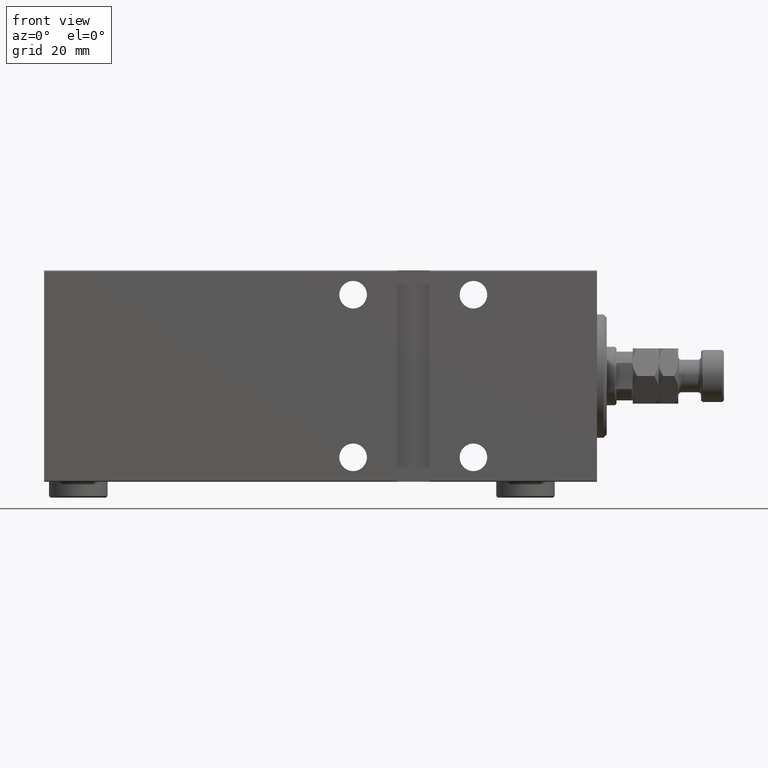
[diagram: clean part render]
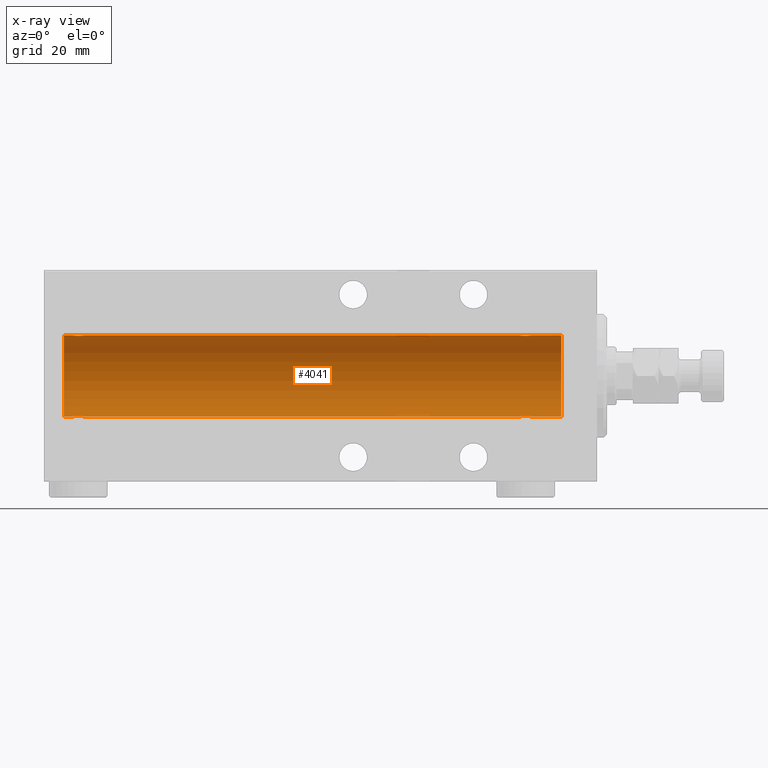
[diagram: x-ray — body ghosted, one internal face saturated and labeled with its STEP entity id]
A machine part, front view, then the same camera in x-ray: the body is ghosted and one INTERNAL B-rep face — a face not visible from any outside direction — is saturated and labeled: STEP entity #4041.
In plain terms, the highlighted cylindrical surface (partial cylindrical patch) has radius 12.5 mm, axis along (1, 0, -0).
Its self-contained STEP definition (entity closure, byte-faithful):
#25 = ORIENTED_EDGE ( 'NONE', *, *, #29886, .F. ) ;
#65 = CARTESIAN_POINT ( 'NONE',  ( 160.5009979209851281, -1.736403706023267546, 12.37902502246767966 ) ) ;
#158 = CARTESIAN_POINT ( 'NONE',  ( 24.00000000000000000, -2.019790789754703983E-15, 12.50000000000000000 ) ) ;
#298 = CARTESIAN_POINT ( 'NONE',  ( 158.1770005689227219, -1.505544071529936634, 12.40934942683854203 ) ) ;
#828 = CARTESIAN_POINT ( 'NONE',  ( 21.48038527642126283, -1.935716533151644381, 12.34923763528284901 ) ) ;
#2013 = EDGE_CURVE ( 'NONE', #27220, #45571, #38935, .T. ) ;
#2108 = CARTESIAN_POINT ( 'NONE',  ( 21.48306273302371494, -1.936441098420706997, -12.34912369794528431 ) ) ;
#2282 = CARTESIAN_POINT ( 'NONE',  ( 158.6138384612056882, -1.797736511708074580, -12.37015393445320477 ) ) ;
#2340 = CARTESIAN_POINT ( 'NONE',  ( 23.79785606468258052, -0.8858253204748003373, -12.46915613403960954 ) ) ;
#2825 = DIRECTION ( 'NONE',  ( -1.000000000000000000, -0.000000000000000000, -0.000000000000000000 ) ) ;
#2845 = DIRECTION ( 'NONE',  ( -1.000000000000000000, 0.000000000000000000, 0.000000000000000000 ) ) ;
#2997 = LINE ( 'NONE', #13259, #30775 ) ;
#3088 = CYLINDRICAL_SURFACE ( 'NONE', #17033, 12.50000000000000000 ) ;
#3446 = DIRECTION ( 'NONE',  ( -1.000000000000000000, -0.000000000000000000, -0.000000000000000000 ) ) ;
#3570 = CARTESIAN_POINT ( 'NONE',  ( 160.8211671285144462, -1.507135374967689234, 12.40915432986587241 ) ) ;
#3637 = VERTEX_POINT ( 'NONE', #158 ) ;
#3788 = CARTESIAN_POINT ( 'NONE',  ( 161.5000000000000000, 3.161822422844574965E-15, 12.50000000000000000 ) ) ;
#3881 = CARTESIAN_POINT ( 'NONE',  ( 20.00000000000000000, -0.2612140938986765581, 12.50000000000000000 ) ) ;
#4020 = CARTESIAN_POINT ( 'NONE',  ( 158.4965442592331044, -1.734959850168406259, 12.37922718965050883 ) ) ;
#4041 = ADVANCED_FACE ( 'NONE', ( #6356 ), #3088, .F. ) ;
#4191 = ORIENTED_EDGE ( 'NONE', *, *, #11265, .T. ) ;
#4334 = CARTESIAN_POINT ( 'NONE',  ( 23.32116712851443552, -1.507135374967700114, 12.40915432986586708 ) ) ;
#4958 = CARTESIAN_POINT ( 'NONE',  ( 164.0000000000000000, 0.000000000000000000, 0.000000000000000000 ) ) ;
#5240 = CARTESIAN_POINT ( 'NONE',  ( 21.35356103036408371, -1.897190184049190043, 12.35529285772521391 ) ) ;
#6056 = VECTOR ( 'NONE', #2825, 1000.000000000000000 ) ;
#6134 = CARTESIAN_POINT ( 'NONE',  ( 164.0000000000000000, 1.530808498934191521E-15, -12.50000000000000000 ) ) ;
#6262 = CARTESIAN_POINT ( 'NONE',  ( 161.4474434057232486, -0.5247436444070344708, -12.49130933415156441 ) ) ;
#6319 = CARTESIAN_POINT ( 'NONE',  ( 21.11383846120566332, -1.797736511708062368, -12.37015393445320122 ) ) ;
#6327 = CIRCLE ( 'NONE', #32425, 12.50000000000000000 ) ;
#6356 = FACE_OUTER_BOUND ( 'NONE', #25401, .T. ) ;
#7071 = CARTESIAN_POINT ( 'NONE',  ( 157.9101890977170797, -1.220538259806341008, 12.44075068685997110 ) ) ;
#7470 = VECTOR ( 'NONE', #12901, 1000.000000000000000 ) ;
#7516 = CARTESIAN_POINT ( 'NONE',  ( 158.9803852764212593, -1.935716533151636165, 12.34923763528285434 ) ) ;
#7752 = CARTESIAN_POINT ( 'NONE',  ( 161.2466213662089842, -1.008535157355840761, 12.46157701909768178 ) ) ;
#8068 = CARTESIAN_POINT ( 'NONE',  ( 21.73608626897564733, -1.986793270638199882, 12.34112317291865146 ) ) ;
#8291 = CARTESIAN_POINT ( 'NONE',  ( 23.94665679898379906, -0.5275951738695691118, 12.49118442338578561 ) ) ;
#8312 = ORIENTED_EDGE ( 'NONE', *, *, #39027, .T. ) ;
#8366 = EDGE_CURVE ( 'NONE', #26537, #44683, #13135, .T. ) ;
#8929 = VERTEX_POINT ( 'NONE', #29616 ) ;
#9028 = CARTESIAN_POINT ( 'NONE',  ( 161.5000000000000000, 1.530808426269529245E-15, -12.50000000000000000 ) ) ;
#9347 = CARTESIAN_POINT ( 'NONE',  ( 24.00000000000000711, -0.2612140938986747818, -12.50000000000000533 ) ) ;
#9527 = VERTEX_POINT ( 'NONE', #40880 ) ;
#9761 = CARTESIAN_POINT ( 'NONE',  ( 160.7202714989742276, -1.589951752150266406, -12.39868561261689450 ) ) ;
#9913 = CARTESIAN_POINT ( 'NONE',  ( 157.5000000000000000, -1.781740193354820723E-14, -12.50000000000000000 ) ) ;
#10000 = CARTESIAN_POINT ( 'NONE',  ( 160.5034557407669240, -1.734959850168406259, -12.37922718965050528 ) ) ;
#10055 = CARTESIAN_POINT ( 'NONE',  ( 19.99999999999999645, -3.213890523917628161E-15, -12.50000000000000000 ) ) ;
#10323 = CARTESIAN_POINT ( 'NONE',  ( 164.0000000000000000, 0.000000000000000000, 0.000000000000000000 ) ) ;
#10427 = ORIENTED_EDGE ( 'NONE', *, *, #35341, .T. ) ;
#10657 = CARTESIAN_POINT ( 'NONE',  ( 20.26436921980423378, -1.002396200863559850, 12.46022444231050841 ) ) ;
#11069 = VERTEX_POINT ( 'NONE', #28962 ) ;
#11109 = CARTESIAN_POINT ( 'NONE',  ( 20.99654425923307599, -1.734959850168413142, 12.37922718965050528 ) ) ;
#11243 = CARTESIAN_POINT ( 'NONE',  ( 160.1442527879773365, -1.897913903092044663, 12.35518060345725289 ) ) ;
#11265 = EDGE_CURVE ( 'NONE', #34588, #3637, #13923, .T. ) ;
#11275 = ORIENTED_EDGE ( 'NONE', *, *, #31664, .T. ) ;
#11337 = CARTESIAN_POINT ( 'NONE',  ( 22.26093497285606304, -1.987194304939079004, 12.34105826212746138 ) ) ;
#12000 = EDGE_CURVE ( 'NONE', #34588, #43705, #27531, .T. ) ;
#12253 = CARTESIAN_POINT ( 'NONE',  ( 23.59744774691022684, -1.231226695485370337, 12.44059298055987917 ) ) ;
#12558 = CARTESIAN_POINT ( 'NONE',  ( 157.7533786337911010, -1.008535157355859635, -12.46157701909767646 ) ) ;
#12782 = CARTESIAN_POINT ( 'NONE',  ( 158.4990020790149003, -1.736403706023283533, -12.37902502246767789 ) ) ;
#12893 = ORIENTED_EDGE ( 'NONE', *, *, #8366, .T. ) ;
#12901 = DIRECTION ( 'NONE',  ( -1.000000000000000000, -0.000000000000000000, -0.000000000000000000 ) ) ;
#13078 = CARTESIAN_POINT ( 'NONE',  ( 23.58981090228289546, -1.220538259806347225, -12.44075068685997287 ) ) ;
#13132 = CARTESIAN_POINT ( 'NONE',  ( 164.0000000000000000, 0.000000000000000000, 12.50000000000000000 ) ) ;
#13135 = LINE ( 'NONE', #6134, #7470 ) ;
#13259 = CARTESIAN_POINT ( 'NONE',  ( 164.0000000000000000, 1.530808498934191521E-15, -12.50000000000000000 ) ) ;
#13315 = CARTESIAN_POINT ( 'NONE',  ( 23.00345574076691335, -1.734959850168410256, -12.37922718965050528 ) ) ;
#13350 = DIRECTION ( 'NONE',  ( 0.000000000000000000, 0.000000000000000000, 1.000000000000000000 ) ) ;
#13439 = VERTEX_POINT ( 'NONE', #9913 ) ;
#13493 = CARTESIAN_POINT ( 'NONE',  ( 158.2814588045805806, -1.591305132013888235, -12.39851226212236135 ) ) ;
#13550 = CARTESIAN_POINT ( 'NONE',  ( 20.67883287148555382, -1.507135374967699670, -12.40915432986587064 ) ) ;
#13794 = CARTESIAN_POINT ( 'NONE',  ( 22.51961472357873717, -1.935716533151642826, -12.34923763528285257 ) ) ;
#13923 = B_SPLINE_CURVE_WITH_KNOTS ( 'NONE', 3,
 ( #35860, #3881, #42440, #42663, #10657, #14611, #24890, #43117, #39153, #11109, #25339, #5240, #828, #8068, #40056, #22739, #11337, #29075, #40284, #19466, #29306, #15524, #4334, #12253, #33729, #8291, #19013, #44015 ),
 .UNSPECIFIED., .F., .F.,
 ( 4, 2, 2, 2, 2, 2, 2, 2, 2, 2, 2, 2, 2, 4 ),
 ( 0.006262980370572162822, 0.007045658964677358610, 0.007436998261729958239, 0.007828337558782557867, 0.008219676855835158363, 0.008611016152887758859, 0.009002355449940359355, 0.009393694746992958117, 0.009785034044045558613, 0.01017637334109815911, 0.01056771263815075960, 0.01095905193520336010, 0.01174173052930856803, 0.01252440912341377596 ),
 .UNSPECIFIED. ) ;
#14089 = CARTESIAN_POINT ( 'NONE',  ( 164.0000000000000000, 0.000000000000000000, 12.50000000000000000 ) ) ;
#14170 = CARTESIAN_POINT ( 'NONE',  ( 164.0000000000000000, 1.530808498934191521E-15, -12.50000000000000000 ) ) ;
#14521 = CARTESIAN_POINT ( 'NONE',  ( 160.3861615387943971, -1.797736511708058815, 12.37015393445321187 ) ) ;
#14611 = CARTESIAN_POINT ( 'NONE',  ( 20.41018909771709744, -1.220538259806348114, 12.44075068685996754 ) ) ;
#14870 = CARTESIAN_POINT ( 'NONE',  ( 164.0000000000000000, 1.530808498934191521E-15, -12.50000000000000000 ) ) ;
#15524 = CARTESIAN_POINT ( 'NONE',  ( 23.21854119541937678, -1.591305132013879131, 12.39851226212236135 ) ) ;
#16056 = CARTESIAN_POINT ( 'NONE',  ( 158.1788328714855538, -1.507135374967705888, -12.40915432986586531 ) ) ;
#16337 = CARTESIAN_POINT ( 'NONE',  ( 20.40255225308977671, -1.231226695485369893, -12.44059298055988627 ) ) ;
#16515 = CARTESIAN_POINT ( 'NONE',  ( 158.8557472120227203, -1.897913903092060428, -12.35518060345725111 ) ) ;
#16996 = CARTESIAN_POINT ( 'NONE',  ( 161.0072215146799692, -1.321088093821073395, -12.43033959299025426 ) ) ;
#17033 = AXIS2_PLACEMENT_3D ( 'NONE', #10323, #24545, #13350 ) ;
#17048 = CARTESIAN_POINT ( 'NONE',  ( 22.88874725797039389, -1.796480516834687347, -12.37033750336835247 ) ) ;
#17340 = CARTESIAN_POINT ( 'NONE',  ( 157.5000000000000853, -0.2612140938986755589, 12.50000000000000533 ) ) ;
#17577 = CARTESIAN_POINT ( 'NONE',  ( 159.2360862689756686, -1.986793270638192555, 12.34112317291865324 ) ) ;
#17798 = CARTESIAN_POINT ( 'NONE',  ( 160.0169372669762993, -1.936441098420697671, 12.34912369794529141 ) ) ;
#19013 = CARTESIAN_POINT ( 'NONE',  ( 23.99999999999998934, -0.2646816682749779659, 12.49999999999999822 ) ) ;
#19182 = DIRECTION ( 'NONE',  ( 0.000000000000000000, 0.000000000000000000, 1.000000000000000000 ) ) ;
#19466 = CARTESIAN_POINT ( 'NONE',  ( 22.88616153879432957, -1.797736511708064366, 12.37015393445321010 ) ) ;
#19588 = AXIS2_PLACEMENT_3D ( 'NONE', #4958, #43959, #19182 ) ;
#19826 = CARTESIAN_POINT ( 'NONE',  ( 23.73563078019576977, -1.002396200863559184, -12.46022444231050663 ) ) ;
#19890 = B_SPLINE_CURVE_WITH_KNOTS ( 'NONE', 3,
 ( #45546, #9347, #27545, #2340, #19826, #13078, #28028, #34094, #23331, #13315, #17048, #37601, #13794, #35036, #24042, #42054, #23563, #2108, #20060, #6319, #41807, #27074, #13550, #16337, #27788, #30815, #23800, #10055 ),
 .UNSPECIFIED., .F., .F.,
 ( 4, 2, 2, 2, 2, 2, 2, 2, 2, 2, 2, 2, 2, 4 ),
 ( 0.006262980370572176700, 0.007045658964677373355, 0.007436998261729973851, 0.007828337558782575215, 0.008219676855835175711, 0.008611016152887776207, 0.009002355449940376703, 0.009393694746992977199, 0.009785034044045577695, 0.01017637334109817646, 0.01056771263815077869, 0.01095905193520337745, 0.01174173052930858711, 0.01252440912341379504 ),
 .UNSPECIFIED. ) ;
#19934 = VECTOR ( 'NONE', #3446, 1000.000000000000000 ) ;
#20060 = CARTESIAN_POINT ( 'NONE',  ( 21.35574721202270254, -1.897913903092047327, -12.35518060345725289 ) ) ;
#20239 = CARTESIAN_POINT ( 'NONE',  ( 161.2978560646825770, -0.8858253204748048892, -12.46915613403961309 ) ) ;
#20479 = CARTESIAN_POINT ( 'NONE',  ( 159.3691003267657322, -2.000082296475576449, -12.33894933996983134 ) ) ;
#20705 = EDGE_CURVE ( 'NONE', #8929, #3637, #28097, .T. ) ;
#21059 = CARTESIAN_POINT ( 'NONE',  ( 159.7609349728561199, -1.987194304939070788, 12.34105826212745960 ) ) ;
#21291 = CARTESIAN_POINT ( 'NONE',  ( 159.3665974954870137, -1.999916920503812090, 12.33897614545467292 ) ) ;
#21516 = CARTESIAN_POINT ( 'NONE',  ( 159.6308996732342678, -2.000082296475561794, 12.33894933996983134 ) ) ;
#21971 = CARTESIAN_POINT ( 'NONE',  ( 158.6112527420295635, -1.796480516834680019, 12.37033750336835602 ) ) ;
#22739 = CARTESIAN_POINT ( 'NONE',  ( 22.13089967323422158, -2.000082296475567567, 12.33894933996983134 ) ) ;
#23331 = CARTESIAN_POINT ( 'NONE',  ( 23.22027149897420628, -1.589951752150275732, -12.39868561261689273 ) ) ;
#23563 = CARTESIAN_POINT ( 'NONE',  ( 21.73906502714393341, -1.987194304939077671, -12.34105826212746138 ) ) ;
#23800 = CARTESIAN_POINT ( 'NONE',  ( 20.00000000000000000, -0.2646816682749822958, -12.50000000000000000 ) ) ;
#23987 = CARTESIAN_POINT ( 'NONE',  ( 159.7639137310243598, -1.986793270638208098, -12.34112317291864791 ) ) ;
#24042 = CARTESIAN_POINT ( 'NONE',  ( 22.13340250451295077, -1.999916920503817197, -12.33897614545467469 ) ) ;
#24068 = CARTESIAN_POINT ( 'NONE',  ( 11.00000000000001066, 0.000000000000000000, 0.000000000000000000 ) ) ;
#24178 = VECTOR ( 'NONE', #31941, 1000.000000000000000 ) ;
#24545 = DIRECTION ( 'NONE',  ( -1.000000000000000000, -0.000000000000000000, -0.000000000000000000 ) ) ;
#24890 = CARTESIAN_POINT ( 'NONE',  ( 20.49277848532006274, -1.321088093821079168, 12.43033959299025071 ) ) ;
#25021 = CARTESIAN_POINT ( 'NONE',  ( 160.7185411954193626, -1.591305132013873358, 12.39851226212236490 ) ) ;
#25339 = CARTESIAN_POINT ( 'NONE',  ( 21.11125274202960256, -1.796480516834689567, 12.37033750336835602 ) ) ;
#25401 = EDGE_LOOP ( 'NONE', ( #25, #12893, #32808, #45207, #8312, #10427, #33557, #36186, #4191, #45648, #11275, #46120 ) ) ;
#25475 = CARTESIAN_POINT ( 'NONE',  ( 157.7643692198042231, -1.002396200863552300, 12.46022444231050841 ) ) ;
#26537 = VERTEX_POINT ( 'NONE', #14170 ) ;
#26817 = CARTESIAN_POINT ( 'NONE',  ( 161.5000000000000000, 3.161822422844574965E-15, 12.50000000000000000 ) ) ;
#27013 = CARTESIAN_POINT ( 'NONE',  ( 157.9025522530898229, -1.231226695485376332, -12.44059298055988450 ) ) ;
#27074 = CARTESIAN_POINT ( 'NONE',  ( 20.78145880458060901, -1.591305132013878021, -12.39851226212236313 ) ) ;
#27220 = VERTEX_POINT ( 'NONE', #13132 ) ;
#27531 = LINE ( 'NONE', #42504, #6056 ) ;
#27545 = CARTESIAN_POINT ( 'NONE',  ( 23.94744340572329833, -0.5247436444070328054, -12.49130933415156619 ) ) ;
#27788 = CARTESIAN_POINT ( 'NONE',  ( 20.25337863379106551, -1.008535157355840761, -12.46157701909767646 ) ) ;
#27885 = EDGE_CURVE ( 'NONE', #13439, #11069, #2997, .T. ) ;
#28028 = CARTESIAN_POINT ( 'NONE',  ( 23.50722151467992660, -1.321088093821078502, -12.43033959299025248 ) ) ;
#28097 = LINE ( 'NONE', #14089, #33012 ) ;
#28962 = CARTESIAN_POINT ( 'NONE',  ( 24.00000000000000000, 1.530808426277417854E-15, -12.50000000000000000 ) ) ;
#28986 = CARTESIAN_POINT ( 'NONE',  ( 158.8535610303641192, -1.897190184049181383, 12.35529285772521391 ) ) ;
#29075 = CARTESIAN_POINT ( 'NONE',  ( 22.51693726697628506, -1.936441098420709439, 12.34912369794528786 ) ) ;
#29306 = CARTESIAN_POINT ( 'NONE',  ( 23.00099792098507834, -1.736403706023272875, 12.37902502246767789 ) ) ;
#29616 = CARTESIAN_POINT ( 'NONE',  ( 157.5000000000000000, -7.266434456262306043E-23, 12.50000000000000000 ) ) ;
#29886 = EDGE_CURVE ( 'NONE', #26537, #27220, #34563, .T. ) ;
#30524 = CARTESIAN_POINT ( 'NONE',  ( 159.6334025045129863, -1.999916920503828077, -12.33897614545467114 ) ) ;
#30756 = CARTESIAN_POINT ( 'NONE',  ( 157.5000000000000000, -0.2646816682750005034, -12.50000000000000178 ) ) ;
#30775 = VECTOR ( 'NONE', #41511, 1000.000000000000000 ) ;
#30815 = CARTESIAN_POINT ( 'NONE',  ( 20.05334320101619738, -0.5275951738695662252, -12.49118442338578561 ) ) ;
#31237 = CARTESIAN_POINT ( 'NONE',  ( 160.3887472579704081, -1.796480516834696672, -12.37033750336835425 ) ) ;
#31319 = DIRECTION ( 'NONE',  ( 0.000000000000000000, 0.000000000000000000, 1.000000000000000000 ) ) ;
#31602 = DIRECTION ( 'NONE',  ( -1.000000000000000000, -0.000000000000000000, -0.000000000000000000 ) ) ;
#31664 = EDGE_CURVE ( 'NONE', #8929, #45571, #35473, .T. ) ;
#31814 = CARTESIAN_POINT ( 'NONE',  ( 161.4466567989838097, -0.5275951738695676685, 12.49118442338578738 ) ) ;
#31941 = DIRECTION ( 'NONE',  ( -1.000000000000000000, -0.000000000000000000, -0.000000000000000000 ) ) ;
#32039 = CARTESIAN_POINT ( 'NONE',  ( 161.0974477469102908, -1.231226695485358569, 12.44059298055988450 ) ) ;
#32413 = CARTESIAN_POINT ( 'NONE',  ( 11.00000000000001066, 0.000000000000000000, 12.50000000000000000 ) ) ;
#32425 = AXIS2_PLACEMENT_3D ( 'NONE', #24068, #2845, #31319 ) ;
#32808 = ORIENTED_EDGE ( 'NONE', *, *, #39234, .T. ) ;
#33012 = VECTOR ( 'NONE', #31602, 1000.000000000000000 ) ;
#33557 = ORIENTED_EDGE ( 'NONE', *, *, #37694, .T. ) ;
#33729 = CARTESIAN_POINT ( 'NONE',  ( 23.74662136620892383, -1.008535157355843648, 12.46157701909767823 ) ) ;
#34041 = CARTESIAN_POINT ( 'NONE',  ( 161.5000000000000000, 1.530808426269529245E-15, -12.50000000000000000 ) ) ;
#34094 = CARTESIAN_POINT ( 'NONE',  ( 23.32299943107732432, -1.505544071529935080, -12.40934942683853848 ) ) ;
#34167 = CARTESIAN_POINT ( 'NONE',  ( 19.99999999999999645, -7.265724481447607133E-23, 12.50000000000000000 ) ) ;
#34274 = CARTESIAN_POINT ( 'NONE',  ( 161.5000000000000284, -0.2612140938986745042, -12.50000000000000000 ) ) ;
#34511 = CARTESIAN_POINT ( 'NONE',  ( 157.5533432010162187, -0.5275951738695868753, -12.49118442338578205 ) ) ;
#34563 = CIRCLE ( 'NONE', #19588, 12.50000000000000000 ) ;
#34588 = VERTEX_POINT ( 'NONE', #34167 ) ;
#34985 = CARTESIAN_POINT ( 'NONE',  ( 161.2356307801957200, -1.002396200863562514, -12.46022444231050663 ) ) ;
#35036 = CARTESIAN_POINT ( 'NONE',  ( 22.26391373102435622, -1.986793270638196551, -12.34112317291864791 ) ) ;
#35341 = EDGE_CURVE ( 'NONE', #37932, #9527, #42924, .T. ) ;
#35430 = CARTESIAN_POINT ( 'NONE',  ( 164.0000000000000000, 0.000000000000000000, 12.50000000000000000 ) ) ;
#35473 = B_SPLINE_CURVE_WITH_KNOTS ( 'NONE', 3,
 ( #36003, #17340, #45846, #38832, #25475, #7071, #43020, #298, #39740, #4020, #21971, #28986, #7516, #17577, #21291, #21516, #21059, #17798, #11243, #14521, #65, #25021, #3570, #32039, #7752, #31814, #46073, #3788 ),
 .UNSPECIFIED., .F., .F.,
 ( 4, 2, 2, 2, 2, 2, 2, 2, 2, 2, 2, 2, 2, 4 ),
 ( 0.006262980370572171496, 0.007045658964677375090, 0.007436998261729976453, 0.007828337558782578684, 0.008219676855835179180, 0.008611016152887781411, 0.009002355449940383642, 0.009393694746992985872, 0.009785034044045588103, 0.01017637334109819033, 0.01056771263815079256, 0.01095905193520339306, 0.01174173052930859579, 0.01252440912341379851 ),
 .UNSPECIFIED. ) ;
#35860 = CARTESIAN_POINT ( 'NONE',  ( 19.99999999999999645, -7.265724481447607133E-23, 12.50000000000000000 ) ) ;
#36003 = CARTESIAN_POINT ( 'NONE',  ( 157.5000000000000000, -7.266434456262306043E-23, 12.50000000000000000 ) ) ;
#36186 = ORIENTED_EDGE ( 'NONE', *, *, #12000, .F. ) ;
#37545 = CARTESIAN_POINT ( 'NONE',  ( 160.8229994310773918, -1.505544071529933081, -12.40934942683854203 ) ) ;
#37601 = CARTESIAN_POINT ( 'NONE',  ( 22.64643896963591985, -1.897190184049187378, -12.35529285772521924 ) ) ;
#37694 = EDGE_CURVE ( 'NONE', #9527, #43705, #6327, .T. ) ;
#37932 = VERTEX_POINT ( 'NONE', #41561 ) ;
#38488 = CARTESIAN_POINT ( 'NONE',  ( 159.2390650271439370, -1.987194304939090328, -12.34105826212745782 ) ) ;
#38832 = CARTESIAN_POINT ( 'NONE',  ( 157.7021439353174515, -0.8858253204748001153, 12.46915613403961132 ) ) ;
#38935 = LINE ( 'NONE', #35430, #19934 ) ;
#39027 = EDGE_CURVE ( 'NONE', #11069, #37932, #19890, .T. ) ;
#39153 = CARTESIAN_POINT ( 'NONE',  ( 20.77972850102579372, -1.589951752150277953, 12.39868561261689095 ) ) ;
#39234 = EDGE_CURVE ( 'NONE', #44683, #13439, #42772, .T. ) ;
#39740 = CARTESIAN_POINT ( 'NONE',  ( 158.2797285010257724, -1.589951752150270181, 12.39868561261689095 ) ) ;
#40056 = CARTESIAN_POINT ( 'NONE',  ( 21.86659749548704212, -1.999916920503819862, 12.33897614545467469 ) ) ;
#40284 = CARTESIAN_POINT ( 'NONE',  ( 22.64425278797729746, -1.897913903092049104, 12.35518060345724933 ) ) ;
#40880 = CARTESIAN_POINT ( 'NONE',  ( 11.00000000000001066, 1.530808498934191521E-15, -12.50000000000000000 ) ) ;
#41511 = DIRECTION ( 'NONE',  ( -1.000000000000000000, -0.000000000000000000, -0.000000000000000000 ) ) ;
#41512 = CARTESIAN_POINT ( 'NONE',  ( 157.5000000000000000, -1.781740193354820723E-14, -12.50000000000000000 ) ) ;
#41561 = CARTESIAN_POINT ( 'NONE',  ( 19.99999999999999645, -3.213890523917628161E-15, -12.50000000000000000 ) ) ;
#41807 = CARTESIAN_POINT ( 'NONE',  ( 20.99900207901491811, -1.736403706023270654, -12.37902502246767966 ) ) ;
#42054 = CARTESIAN_POINT ( 'NONE',  ( 21.86910032676576421, -2.000082296475566679, -12.33894933996983490 ) ) ;
#42440 = CARTESIAN_POINT ( 'NONE',  ( 20.05255659427669812, -0.5247436444070349149, 12.49130933415156974 ) ) ;
#42504 = CARTESIAN_POINT ( 'NONE',  ( 164.0000000000000000, 0.000000000000000000, 12.50000000000000000 ) ) ;
#42663 = CARTESIAN_POINT ( 'NONE',  ( 20.20214393531741237, -0.8858253204748030019, 12.46915613403961132 ) ) ;
#42772 = B_SPLINE_CURVE_WITH_KNOTS ( 'NONE', 3,
 ( #34041, #34274, #6262, #20239, #34985, #44782, #16996, #37545, #9761, #10000, #31237, #45257, #44552, #23987, #30524, #20479, #38488, #45492, #16515, #2282, #12782, #13493, #16056, #27013, #12558, #34511, #30756, #41512 ),
 .UNSPECIFIED., .F., .F.,
 ( 4, 2, 2, 2, 2, 2, 2, 2, 2, 2, 2, 2, 2, 4 ),
 ( 0.006262980370572156751, 0.007045658964677361212, 0.007436998261729963443, 0.007828337558782566541, 0.008219676855835168772, 0.008611016152887771002, 0.009002355449940373233, 0.009393694746992975464, 0.009785034044045577695, 0.01017637334109817993, 0.01056771263815078216, 0.01095905193520338439, 0.01174173052930858885, 0.01252440912341379331 ),
 .UNSPECIFIED. ) ;
#42924 = LINE ( 'NONE', #14870, #24178 ) ;
#43020 = CARTESIAN_POINT ( 'NONE',  ( 157.9927784853200308, -1.321088093821080278, 12.43033959299025071 ) ) ;
#43117 = CARTESIAN_POINT ( 'NONE',  ( 20.67700056892266502, -1.505544071529936634, 12.40934942683854025 ) ) ;
#43705 = VERTEX_POINT ( 'NONE', #32413 ) ;
#43959 = DIRECTION ( 'NONE',  ( -1.000000000000000000, 0.000000000000000000, 0.000000000000000000 ) ) ;
#44015 = CARTESIAN_POINT ( 'NONE',  ( 24.00000000000000000, -2.019790789754703983E-15, 12.50000000000000000 ) ) ;
#44552 = CARTESIAN_POINT ( 'NONE',  ( 160.0196147235787976, -1.935716533151651486, -12.34923763528284724 ) ) ;
#44683 = VERTEX_POINT ( 'NONE', #9028 ) ;
#44782 = CARTESIAN_POINT ( 'NONE',  ( 161.0898109022828919, -1.220538259806352777, -12.44075068685996754 ) ) ;
#45207 = ORIENTED_EDGE ( 'NONE', *, *, #27885, .T. ) ;
#45257 = CARTESIAN_POINT ( 'NONE',  ( 160.1464389696359092, -1.897190184049197592, -12.35529285772521568 ) ) ;
#45492 = CARTESIAN_POINT ( 'NONE',  ( 158.9830627330237292, -1.936441098420721207, -12.34912369794528786 ) ) ;
#45546 = CARTESIAN_POINT ( 'NONE',  ( 24.00000000000000000, 1.530808426277417854E-15, -12.50000000000000000 ) ) ;
#45571 = VERTEX_POINT ( 'NONE', #26817 ) ;
#45648 = ORIENTED_EDGE ( 'NONE', *, *, #20705, .F. ) ;
#45846 = CARTESIAN_POINT ( 'NONE',  ( 157.5525565942766946, -0.5247436444070314732, 12.49130933415156619 ) ) ;
#46073 = CARTESIAN_POINT ( 'NONE',  ( 161.5000000000000284, -0.2646816682749797423, 12.50000000000000533 ) ) ;
#46120 = ORIENTED_EDGE ( 'NONE', *, *, #2013, .F. ) ;